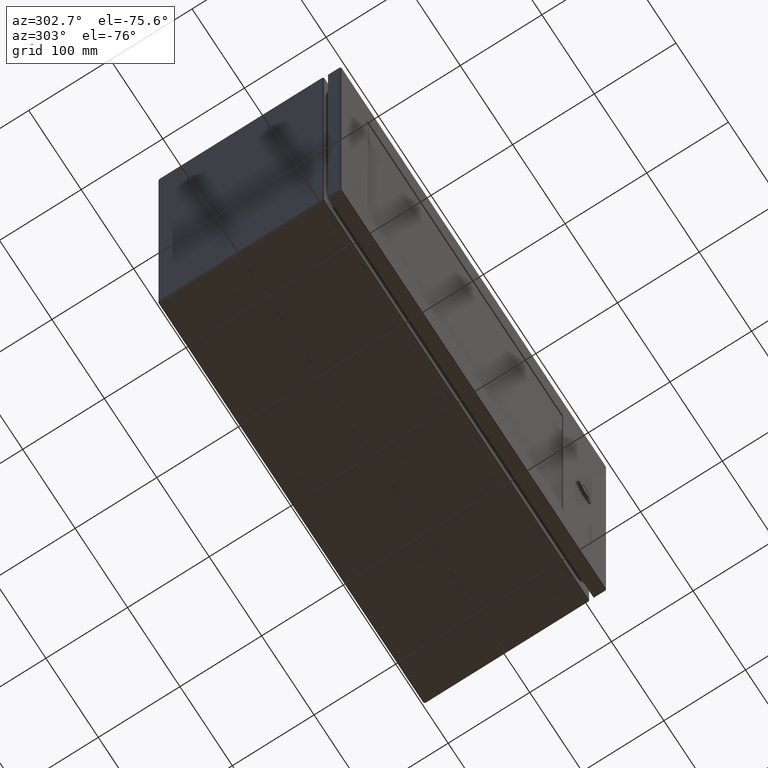
[diagram: clean part render]
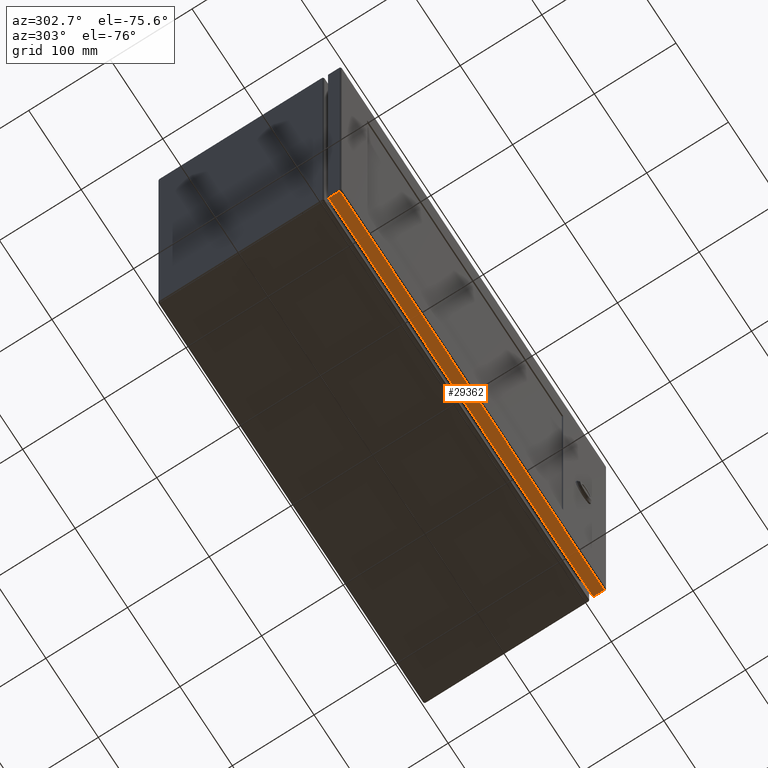
[diagram: same view with one face highlighted and labeled with its STEP entity id]
A machine part, auxiliary view. The second image highlights one B-rep face of the part: STEP entity #29362.
In plain terms, the highlighted planar face has unit normal (0, 0, -1).
Its self-contained STEP definition (entity closure, byte-faithful):
#1789 = DIRECTION ( 'NONE',  ( 0.0000000000000000000, 1.000000000000000000, 0.0000000000000000000 ) ) ;
#4289 = DIRECTION ( 'NONE',  ( 1.000000000000000000, 0.0000000000000000000, 0.0000000000000000000 ) ) ;
#4477 = DIRECTION ( 'NONE',  ( 0.0000000000000000000, -1.000000000000000000, -0.0000000000000000000 ) ) ;
#4677 = ORIENTED_EDGE ( 'NONE', *, *, #21358, .T. ) ;
#6937 = CARTESIAN_POINT ( 'NONE',  ( -9.924921259842529153, -8.775000000000002132, -9.984999999999997655 ) ) ;
#7910 = DIRECTION ( 'NONE',  ( 0.0000000000000000000, 6.123031769111889989E-17, -1.000000000000000000 ) ) ;
#8688 = EDGE_LOOP ( 'NONE', ( #32541, #15412, #4677, #12266 ) ) ;
#9490 = DIRECTION ( 'NONE',  ( 1.000000000000000000, -3.749151804555340178E-33, -6.123031769111889989E-17 ) ) ;
#10975 = DIRECTION ( 'NONE',  ( 0.0000000000000000000, 1.000000000000000000, 6.123031769111889989E-17 ) ) ;
#11441 = CARTESIAN_POINT ( 'NONE',  ( 9.929921259842510395, -8.736000000000005983, -9.984999999999995879 ) ) ;
#12266 = ORIENTED_EDGE ( 'NONE', *, *, #29698, .T. ) ;
#12807 = VERTEX_POINT ( 'NONE', #35640 ) ;
#13144 = LINE ( 'NONE', #29923, #14051 ) ;
#14051 = VECTOR ( 'NONE', #9490, 39.37007874015748143 ) ;
#15412 = ORIENTED_EDGE ( 'NONE', *, *, #29672, .T. ) ;
#15760 = CARTESIAN_POINT ( 'NONE',  ( 9.929921259842510395, -8.196999999999999176, -9.984999999999997655 ) ) ;
#16495 = CARTESIAN_POINT ( 'NONE',  ( -9.896000000000007901, -8.196999999999999176, -9.984999999999997655 ) ) ;
#18110 = VECTOR ( 'NONE', #4477, 39.37007874015748143 ) ;
#19350 = VECTOR ( 'NONE', #1789, 39.37007874015748143 ) ;
#19777 = CARTESIAN_POINT ( 'NONE',  ( -9.924921259842529153, -8.196999999999999176, -9.984999999999997655 ) ) ;
#21156 = AXIS2_PLACEMENT_3D ( 'NONE', #33866, #7910, #10975 ) ;
#21358 = EDGE_CURVE ( 'NONE', #25916, #12807, #27578, .T. ) ;
#21772 = CARTESIAN_POINT ( 'NONE',  ( -9.924921259842529153, -8.736000000000005983, -9.984999999999995879 ) ) ;
#22152 = VERTEX_POINT ( 'NONE', #21772 ) ;
#23056 = EDGE_CURVE ( 'NONE', #22152, #25564, #13144, .T. ) ;
#23226 = VECTOR ( 'NONE', #4289, 39.37007874015748143 ) ;
#24924 = LINE ( 'NONE', #15760, #18110 ) ;
#25564 = VERTEX_POINT ( 'NONE', #11441 ) ;
#25916 = VERTEX_POINT ( 'NONE', #19777 ) ;
#27578 = LINE ( 'NONE', #16495, #23226 ) ;
#29362 = ADVANCED_FACE ( 'NONE', ( #34048 ), #31206, .T. ) ;
#29672 = EDGE_CURVE ( 'NONE', #22152, #25916, #36306, .T. ) ;
#29698 = EDGE_CURVE ( 'NONE', #12807, #25564, #24924, .T. ) ;
#29923 = CARTESIAN_POINT ( 'NONE',  ( 9.900999999999990919, -8.736000000000009535, -9.984999999999995879 ) ) ;
#31206 = PLANE ( 'NONE',  #21156 ) ;
#32541 = ORIENTED_EDGE ( 'NONE', *, *, #23056, .F. ) ;
#33866 = CARTESIAN_POINT ( 'NONE',  ( 9.900999999999990919, -8.775000000000002132, -9.984999999999997655 ) ) ;
#34048 = FACE_OUTER_BOUND ( 'NONE', #8688, .T. ) ;
#35640 = CARTESIAN_POINT ( 'NONE',  ( 9.929921259842510395, -8.196999999999999176, -9.984999999999997655 ) ) ;
#36306 = LINE ( 'NONE', #6937, #19350 ) ;